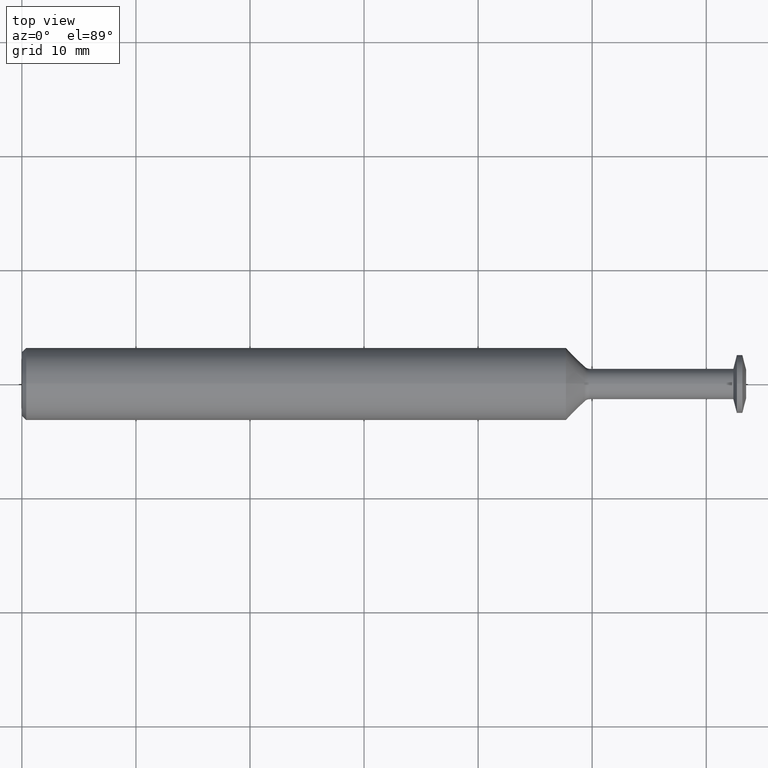
[diagram: clean part render]
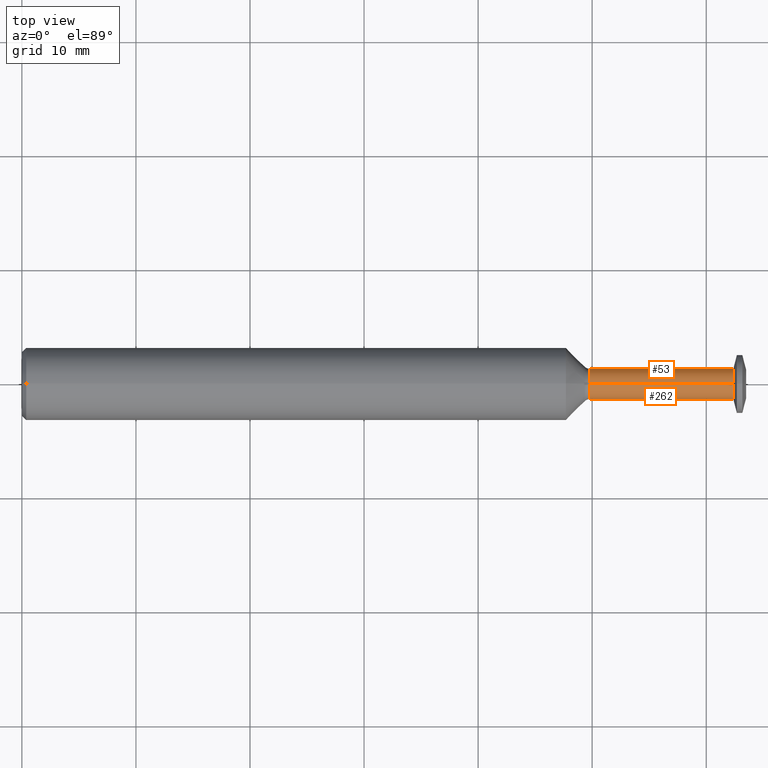
[diagram: same view with one multi-face feature highlighted, each face labeled with its STEP entity id]
A machine part, top view. The highlighted faces form ONE feature: a constant-radius fillet chain: 2 tangent blend faces with common blend radius 1.3335 mm. The faces share edges in the B-rep.
Their STEP definitions:
[1] entity #262 (Cylinder):
#27 = DIRECTION ( 'NONE',  ( 0.000000000000000000, 0.000000000000000000, 1.000000000000000000 ) ) ;
#30 = ORIENTED_EDGE ( 'NONE', *, *, #473, .F. ) ;
#36 = EDGE_CURVE ( 'NONE', #425, #527, #277, .T. ) ;
#38 = DIRECTION ( 'NONE',  ( 0.000000000000000000, 0.000000000000000000, 1.000000000000000000 ) ) ;
#40 = CARTESIAN_POINT ( 'NONE',  ( 2.455737876683962817, 9.337931843498541365E-18, 0.05249999999999999806 ) ) ;
#58 = CARTESIAN_POINT ( 'NONE',  ( 0.000000000000000000, 0.000000000000000000, 0.000000000000000000 ) ) ;
#79 = VERTEX_POINT ( 'NONE', #361 ) ;
#84 = CARTESIAN_POINT ( 'NONE',  ( 2.455737876683962817, 0.000000000000000000, 0.000000000000000000 ) ) ;
#112 = AXIS2_PLACEMENT_3D ( 'NONE', #58, #519, #27 ) ;
#118 = CARTESIAN_POINT ( 'NONE',  ( 1.960355339059327573, 6.429395695523591642E-18, -0.05249999999999986622 ) ) ;
#122 = VECTOR ( 'NONE', #521, 39.37007874015748143 ) ;
#124 = DIRECTION ( 'NONE',  ( 0.000000000000000000, 0.000000000000000000, 1.000000000000000000 ) ) ;
#160 = VECTOR ( 'NONE', #293, 39.37007874015748143 ) ;
#161 = DIRECTION ( 'NONE',  ( -1.000000000000000000, -0.000000000000000000, -0.000000000000000000 ) ) ;
#164 = LINE ( 'NONE', #363, #122 ) ;
#206 = EDGE_CURVE ( 'NONE', #380, #527, #495, .T. ) ;
#257 = AXIS2_PLACEMENT_3D ( 'NONE', #84, #161, #38 ) ;
#261 = CYLINDRICAL_SURFACE ( 'NONE', #112, 0.05249999999999993561 ) ;
#262 = ADVANCED_FACE ( 'NONE', ( #389 ), #261, .T. ) ;
#277 = LINE ( 'NONE', #412, #160 ) ;
#293 = DIRECTION ( 'NONE',  ( -1.000000000000000000, -0.000000000000000000, -0.000000000000000000 ) ) ;
#317 = CARTESIAN_POINT ( 'NONE',  ( 1.960355339059327573, 0.000000000000000000, 0.05249999999999986622 ) ) ;
#326 = CARTESIAN_POINT ( 'NONE',  ( 1.960355339059327573, 0.000000000000000000, 0.000000000000000000 ) ) ;
#344 = ORIENTED_EDGE ( 'NONE', *, *, #410, .T. ) ;
#358 = EDGE_LOOP ( 'NONE', ( #30, #344, #483, #383 ) ) ;
#361 = CARTESIAN_POINT ( 'NONE',  ( 2.455737876683962817, 0.000000000000000000, -0.05249999999999999806 ) ) ;
#363 = CARTESIAN_POINT ( 'NONE',  ( 0.000000000000000000, 6.429395695523596264E-18, -0.05249999999999993561 ) ) ;
#380 = VERTEX_POINT ( 'NONE', #118 ) ;
#383 = ORIENTED_EDGE ( 'NONE', *, *, #206, .F. ) ;
#386 = AXIS2_PLACEMENT_3D ( 'NONE', #326, #488, #124 ) ;
#389 = FACE_OUTER_BOUND ( 'NONE', #358, .T. ) ;
#410 = EDGE_CURVE ( 'NONE', #79, #425, #486, .T. ) ;
#412 = CARTESIAN_POINT ( 'NONE',  ( 0.000000000000000000, 0.000000000000000000, 0.05249999999999993561 ) ) ;
#425 = VERTEX_POINT ( 'NONE', #40 ) ;
#473 = EDGE_CURVE ( 'NONE', #79, #380, #164, .T. ) ;
#483 = ORIENTED_EDGE ( 'NONE', *, *, #36, .T. ) ;
#486 = CIRCLE ( 'NONE', #257, 0.05249999999999999806 ) ;
#488 = DIRECTION ( 'NONE',  ( -1.000000000000000000, -0.000000000000000000, -0.000000000000000000 ) ) ;
#495 = CIRCLE ( 'NONE', #386, 0.05249999999999986622 ) ;
#519 = DIRECTION ( 'NONE',  ( -1.000000000000000000, -0.000000000000000000, -0.000000000000000000 ) ) ;
#521 = DIRECTION ( 'NONE',  ( -1.000000000000000000, -0.000000000000000000, -0.000000000000000000 ) ) ;
#527 = VERTEX_POINT ( 'NONE', #317 ) ;
[2] entity #53 (Cylinder):
#9 = FACE_OUTER_BOUND ( 'NONE', #180, .T. ) ;
#29 = DIRECTION ( 'NONE',  ( 0.000000000000000000, 0.000000000000000000, 1.000000000000000000 ) ) ;
#32 = CIRCLE ( 'NONE', #171, 0.05249999999999999806 ) ;
#36 = EDGE_CURVE ( 'NONE', #425, #527, #277, .T. ) ;
#40 = CARTESIAN_POINT ( 'NONE',  ( 2.455737876683962817, 9.337931843498541365E-18, 0.05249999999999999806 ) ) ;
#53 = ADVANCED_FACE ( 'NONE', ( #9 ), #449, .T. ) ;
#79 = VERTEX_POINT ( 'NONE', #361 ) ;
#118 = CARTESIAN_POINT ( 'NONE',  ( 1.960355339059327573, 6.429395695523591642E-18, -0.05249999999999986622 ) ) ;
#122 = VECTOR ( 'NONE', #521, 39.37007874015748143 ) ;
#128 = DIRECTION ( 'NONE',  ( 0.000000000000000000, 0.000000000000000000, 1.000000000000000000 ) ) ;
#159 = ORIENTED_EDGE ( 'NONE', *, *, #334, .F. ) ;
#160 = VECTOR ( 'NONE', #293, 39.37007874015748143 ) ;
#164 = LINE ( 'NONE', #363, #122 ) ;
#171 = AXIS2_PLACEMENT_3D ( 'NONE', #189, #378, #301 ) ;
#180 = EDGE_LOOP ( 'NONE', ( #239, #266, #159, #196 ) ) ;
#189 = CARTESIAN_POINT ( 'NONE',  ( 2.455737876683962817, 0.000000000000000000, 0.000000000000000000 ) ) ;
#196 = ORIENTED_EDGE ( 'NONE', *, *, #36, .F. ) ;
#226 = AXIS2_PLACEMENT_3D ( 'NONE', #459, #232, #29 ) ;
#232 = DIRECTION ( 'NONE',  ( -1.000000000000000000, -0.000000000000000000, -0.000000000000000000 ) ) ;
#237 = CIRCLE ( 'NONE', #226, 0.05249999999999986622 ) ;
#239 = ORIENTED_EDGE ( 'NONE', *, *, #304, .T. ) ;
#252 = DIRECTION ( 'NONE',  ( -1.000000000000000000, -0.000000000000000000, -0.000000000000000000 ) ) ;
#266 = ORIENTED_EDGE ( 'NONE', *, *, #473, .T. ) ;
#277 = LINE ( 'NONE', #412, #160 ) ;
#293 = DIRECTION ( 'NONE',  ( -1.000000000000000000, -0.000000000000000000, -0.000000000000000000 ) ) ;
#301 = DIRECTION ( 'NONE',  ( 0.000000000000000000, 0.000000000000000000, 1.000000000000000000 ) ) ;
#304 = EDGE_CURVE ( 'NONE', #425, #79, #32, .T. ) ;
#317 = CARTESIAN_POINT ( 'NONE',  ( 1.960355339059327573, 0.000000000000000000, 0.05249999999999986622 ) ) ;
#334 = EDGE_CURVE ( 'NONE', #527, #380, #237, .T. ) ;
#361 = CARTESIAN_POINT ( 'NONE',  ( 2.455737876683962817, 0.000000000000000000, -0.05249999999999999806 ) ) ;
#363 = CARTESIAN_POINT ( 'NONE',  ( 0.000000000000000000, 6.429395695523596264E-18, -0.05249999999999993561 ) ) ;
#378 = DIRECTION ( 'NONE',  ( -1.000000000000000000, -0.000000000000000000, -0.000000000000000000 ) ) ;
#380 = VERTEX_POINT ( 'NONE', #118 ) ;
#395 = AXIS2_PLACEMENT_3D ( 'NONE', #444, #252, #128 ) ;
#412 = CARTESIAN_POINT ( 'NONE',  ( 0.000000000000000000, 0.000000000000000000, 0.05249999999999993561 ) ) ;
#425 = VERTEX_POINT ( 'NONE', #40 ) ;
#444 = CARTESIAN_POINT ( 'NONE',  ( 0.000000000000000000, 0.000000000000000000, 0.000000000000000000 ) ) ;
#449 = CYLINDRICAL_SURFACE ( 'NONE', #395, 0.05249999999999993561 ) ;
#459 = CARTESIAN_POINT ( 'NONE',  ( 1.960355339059327573, 0.000000000000000000, 0.000000000000000000 ) ) ;
#473 = EDGE_CURVE ( 'NONE', #79, #380, #164, .T. ) ;
#521 = DIRECTION ( 'NONE',  ( -1.000000000000000000, -0.000000000000000000, -0.000000000000000000 ) ) ;
#527 = VERTEX_POINT ( 'NONE', #317 ) ;